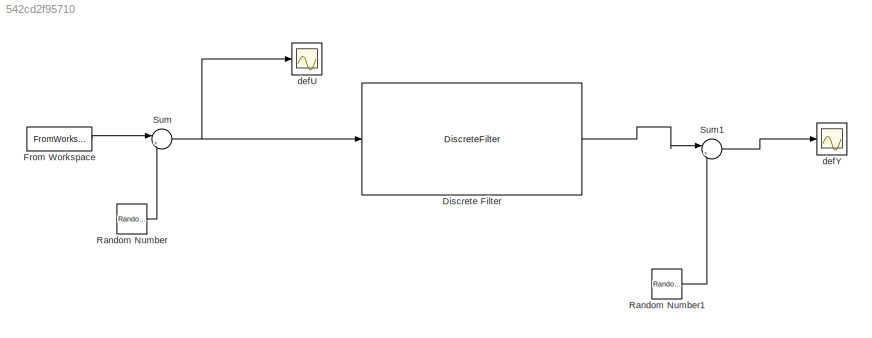
MODEL slx_542cd2f95710
KIND model
CONFIG AbsTol = auto
CONFIG EnableMultiTasking = off
CONFIG FixedStep = auto
CONFIG MaxStep = auto
CONFIG MinStep = auto
CONFIG RelTol = 1e-3
CONFIG SampleTimeConstraint = Unconstrained
CONFIG Solver = VariableStepAuto
CONFIG SolverName = VariableStepAuto
CONFIG StartTime = 0.0
CONFIG StopTime = ttotal
BLOCK [DiscreteFilter] Discrete Filter
  Denominator = denom
  InputPortMap = u0
  Numerator = num
  Ports = [1, 1]
BLOCK [FromWorkspace] From Workspace
  SampleTime = tmuestra
  VariableName = u
  ZeroCross = on
BLOCK [RandomNumber] Random Number
  SampleTime = tmuestra
  Seed = 354872
  Variance = var
BLOCK [RandomNumber] Random Number1
  SampleTime = tmuestra
  Seed = iseed
  Variance = var/10000
BLOCK [Sum] Sum
  IconShape = round
  InputSameDT = off
  Inputs = |++
  OutDataTypeStr = Inherit: Inherit via internal rule
  Ports = [2, 1]
  SaturateOnIntegerOverflow = off
BLOCK [Sum] Sum1
  IconShape = round
  InputSameDT = off
  Inputs = |++
  OutDataTypeStr = Inherit: Inherit via internal rule
  Ports = [2, 1]
  SaturateOnIntegerOverflow = off
BLOCK [Scope] defU 
  Floating = off
  NumInputPorts = 1
  Ports = [1]
  ScopeSpecificationString = Simulink.scopes.TimeScopeBlockCfg('CurrentConfiguration', extmgr.ConfigurationSet(extmgr.Configuration('Core','General UI',true),extmgr.Configuration('Core','Source UI',true),extmgr.Configuration('Sources','WiredSimulink',true,'DataLogging',true,'DataLoggingVariableName','defU','DataLoggingSaveFormat','Array'),extmgr.Configuration('Visuals','Time Domain',true,'SerializedDisplays',{struct('MinYLimR...<+1450ch>
BLOCK [Scope] defY 
  Floating = off
  NumInputPorts = 1
  Ports = [1]
  ScopeSpecificationString = Simulink.scopes.TimeScopeBlockCfg('CurrentConfiguration', extmgr.ConfigurationSet(extmgr.Configuration('Core','General UI',true),extmgr.Configuration('Core','Source UI',true),extmgr.Configuration('Sources','WiredSimulink',true,'DataLoggingVariableName','defY','DataLogging',true,'DataLoggingSaveFormat','Array'),extmgr.Configuration('Visuals','Time Domain',true,'SerializedDisplays',{struct('MinYLimR...<+1415ch>
LINE Discrete Filter:1 -> Sum1:1
LINE From Workspace:1 -> Sum:1
LINE Random Number1:1 -> Sum1:2
LINE Random Number:1 -> Sum:2
LINE Sum1:1 -> defY :1
NET Sum:1 -> Discrete Filter:1, defU :1
note: NET lines group one-source signal fan-out (src -> all destinations, sorted); 1:1 wires keep LINE
